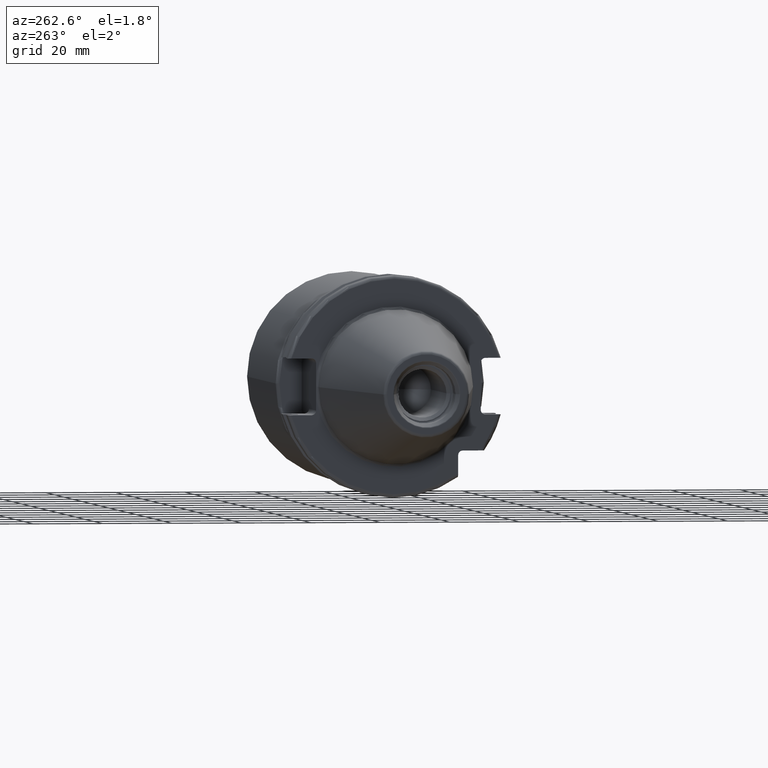
[diagram: clean part render]
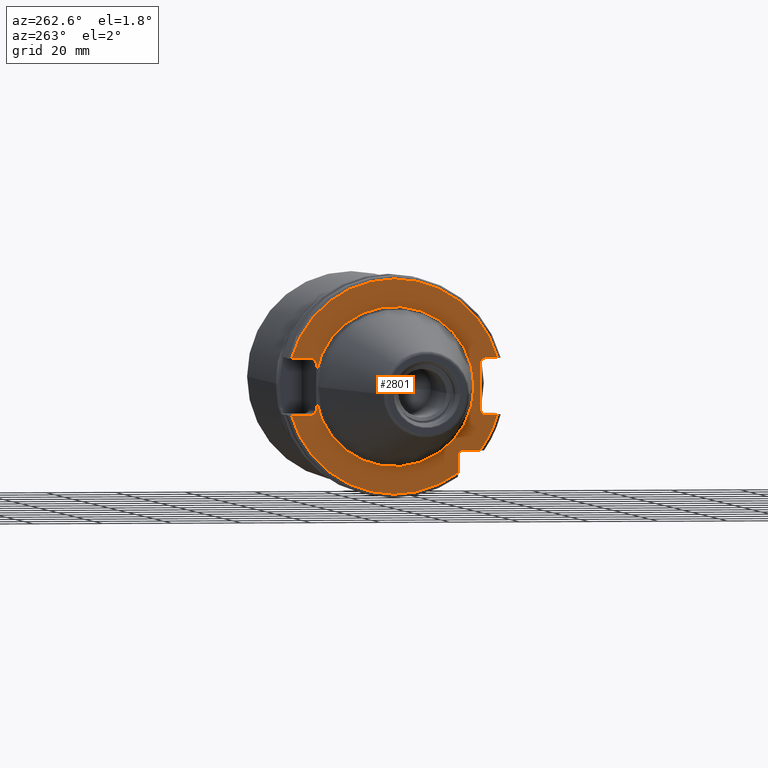
[diagram: same view with one face highlighted and labeled with its STEP entity id]
A machine part, auxiliary view. The second image highlights one B-rep face of the part: STEP entity #2801.
In plain terms, the highlighted planar face has unit normal (1, 0, 0).
Its self-contained STEP definition (entity closure, byte-faithful):
#105=CARTESIAN_POINT('',(3.2E0,2.255E1,-3.842281223440E0));
#117=CARTESIAN_POINT('',(3.2E0,0.E0,0.E0));
#118=DIRECTION('',(-1.E0,0.E0,0.E0));
#119=DIRECTION('',(0.E0,9.857923497268E-1,-1.679685780739E-1));
#120=AXIS2_PLACEMENT_3D('',#117,#118,#119);
#142=CARTESIAN_POINT('',(3.2E0,2.39E1,-6.75E0));
#143=DIRECTION('',(1.E0,0.E0,0.E0));
#144=DIRECTION('',(0.E0,-1.E0,0.E0));
#145=AXIS2_PLACEMENT_3D('',#142,#143,#144);
#199=CARTESIAN_POINT('',(3.2E0,2.39E1,6.75E0));
#200=DIRECTION('',(1.E0,0.E0,0.E0));
#201=DIRECTION('',(0.E0,0.E0,1.E0));
#202=AXIS2_PLACEMENT_3D('',#199,#200,#201);
#244=CARTESIAN_POINT('',(3.2E0,-2.62E1,6.75E0));
#245=DIRECTION('',(1.E0,0.E0,0.E0));
#246=DIRECTION('',(0.E0,1.E0,0.E0));
#247=AXIS2_PLACEMENT_3D('',#244,#245,#246);
#610=CARTESIAN_POINT('',(3.2E0,-2.62E1,-6.75E0));
#611=DIRECTION('',(1.E0,0.E0,0.E0));
#612=DIRECTION('',(0.E0,0.E0,-1.E0));
#613=AXIS2_PLACEMENT_3D('',#610,#611,#612);
#677=DIRECTION('',(0.E0,0.E0,-1.E0));
#678=VECTOR('',#677,2.907718776560E0);
#679=CARTESIAN_POINT('',(3.2E0,2.255E1,6.75E0));
#680=LINE('',#679,#678);
#681=DIRECTION('',(0.E0,-1.E0,0.E0));
#682=VECTOR('',#681,5.776950757280E0);
#683=CARTESIAN_POINT('',(3.2E0,2.967695075728E1,8.1E0));
#684=LINE('',#683,#682);
#685=CARTESIAN_POINT('',(3.2E0,0.E0,0.E0));
#686=DIRECTION('',(1.E0,0.E0,0.E0));
#687=DIRECTION('',(0.E0,9.647119303464E-1,2.633075985372E-1));
#688=AXIS2_PLACEMENT_3D('',#685,#686,#687);
#690=DIRECTION('',(0.E0,1.E0,0.E0));
#691=VECTOR('',#690,3.476950757280E0);
#692=CARTESIAN_POINT('',(3.2E0,-2.967695075728E1,8.1E0));
#693=LINE('',#692,#691);
#694=DIRECTION('',(0.E0,0.E0,1.E0));
#695=VECTOR('',#694,1.35E1);
#696=CARTESIAN_POINT('',(3.2E0,-2.485E1,-6.75E0));
#697=LINE('',#696,#695);
#698=DIRECTION('',(0.E0,1.E0,0.E0));
#699=VECTOR('',#698,3.476950757280E0);
#700=CARTESIAN_POINT('',(3.2E0,-2.967695075728E1,-8.1E0));
#701=LINE('',#700,#699);
#702=CARTESIAN_POINT('',(3.2E0,0.E0,0.E0));
#703=DIRECTION('',(-1.E0,0.E0,0.E0));
#704=DIRECTION('',(0.E0,-8.026089992512E-1,-5.965054855750E-1));
#705=AXIS2_PLACEMENT_3D('',#702,#703,#704);
#707=DIRECTION('',(0.E0,-1.E0,0.E0));
#708=VECTOR('',#707,4.990259339464E0);
#709=CARTESIAN_POINT('',(3.2E0,-1.97E1,-1.835E1));
#710=LINE('',#709,#708);
#711=DIRECTION('',(0.E0,0.E0,1.E0));
#712=VECTOR('',#711,4.990259339464E0);
#713=CARTESIAN_POINT('',(3.2E0,-1.835E1,-2.469025933946E1));
#714=LINE('',#713,#712);
#715=CARTESIAN_POINT('',(3.2E0,0.E0,0.E0));
#716=DIRECTION('',(-1.E0,0.E0,0.E0));
#717=DIRECTION('',(0.E0,9.647119303464E-1,-2.633075985372E-1));
#718=AXIS2_PLACEMENT_3D('',#715,#716,#717);
#720=DIRECTION('',(0.E0,-1.E0,0.E0));
#721=VECTOR('',#720,5.776950757280E0);
#722=CARTESIAN_POINT('',(3.2E0,2.967695075728E1,-8.1E0));
#723=LINE('',#722,#721);
#724=DIRECTION('',(0.E0,0.E0,-1.E0));
#725=VECTOR('',#724,2.907718776560E0);
#726=CARTESIAN_POINT('',(3.2E0,2.255E1,-3.842281223440E0));
#727=LINE('',#726,#725);
#737=CARTESIAN_POINT('',(3.2E0,2.967695075728E1,8.1E0));
#744=CARTESIAN_POINT('',(3.2E0,-2.967695075728E1,8.1E0));
#1164=CARTESIAN_POINT('',(3.2E0,2.967695075728E1,-8.1E0));
#1200=CARTESIAN_POINT('',(3.2E0,-2.967695075728E1,-8.1E0));
#1227=CARTESIAN_POINT('',(3.2E0,-1.97E1,-1.97E1));
#1228=DIRECTION('',(1.E0,0.E0,0.E0));
#1229=DIRECTION('',(0.E0,1.E0,0.E0));
#1230=AXIS2_PLACEMENT_3D('',#1227,#1228,#1229);
#1298=CARTESIAN_POINT('',(3.2E0,2.255E1,3.842281223440E0));
#1309=CARTESIAN_POINT('',(3.2E0,0.E0,0.E0));
#1310=DIRECTION('',(1.E0,0.E0,0.E0));
#1311=DIRECTION('',(0.E0,9.857923497268E-1,1.679685780739E-1));
#1312=AXIS2_PLACEMENT_3D('',#1309,#1310,#1311);
#1532=CARTESIAN_POINT('',(3.2E0,-2.2875E1,0.E0));
#1534=VERTEX_POINT('',#1532);
#1674=VERTEX_POINT('',#1298);
#1676=VERTEX_POINT('',#105);
#1679=VERTEX_POINT('',#737);
#1680=VERTEX_POINT('',#744);
#1683=VERTEX_POINT('',#1164);
#1684=VERTEX_POINT('',#1200);
#1699=CARTESIAN_POINT('',(3.2E0,-1.835E1,-2.469025933946E1));
#1700=VERTEX_POINT('',#1699);
#1702=CARTESIAN_POINT('',(3.2E0,2.39E1,-8.1E0));
#1704=VERTEX_POINT('',#1702);
#1706=CARTESIAN_POINT('',(3.2E0,2.39E1,8.1E0));
#1708=VERTEX_POINT('',#1706);
#1710=CARTESIAN_POINT('',(3.2E0,-2.485E1,-6.75E0));
#1712=VERTEX_POINT('',#1710);
#1714=CARTESIAN_POINT('',(3.2E0,-2.62E1,-8.1E0));
#1716=VERTEX_POINT('',#1714);
#1718=CARTESIAN_POINT('',(3.2E0,-2.62E1,8.1E0));
#1720=VERTEX_POINT('',#1718);
#1722=CARTESIAN_POINT('',(3.2E0,-2.485E1,6.75E0));
#1724=VERTEX_POINT('',#1722);
#1731=CARTESIAN_POINT('',(3.2E0,2.255E1,6.75E0));
#1732=VERTEX_POINT('',#1731);
#1733=CARTESIAN_POINT('',(3.2E0,2.255E1,-6.75E0));
#1734=VERTEX_POINT('',#1733);
#1735=CARTESIAN_POINT('',(3.2E0,-1.97E1,-1.835E1));
#1736=CARTESIAN_POINT('',(3.2E0,-2.469025933946E1,-1.835E1));
#1737=VERTEX_POINT('',#1735);
#1738=VERTEX_POINT('',#1736);
#1739=CARTESIAN_POINT('',(3.2E0,-1.835E1,-1.97E1));
#1740=VERTEX_POINT('',#1739);
#2768=CARTESIAN_POINT('',(3.2E0,0.E0,0.E0));
#2769=DIRECTION('',(1.E0,0.E0,0.E0));
#2770=DIRECTION('',(0.E0,-1.E0,0.E0));
#2771=AXIS2_PLACEMENT_3D('',#2768,#2769,#2770);
#2772=PLANE('',#2771);
#2773=ORIENTED_EDGE('',*,*,#2016,.F.);
#2774=ORIENTED_EDGE('',*,*,#2102,.F.);
#2775=ORIENTED_EDGE('',*,*,#2137,.F.);
#2777=ORIENTED_EDGE('',*,*,#2776,.T.);
#2778=ORIENTED_EDGE('',*,*,#2163,.T.);
#2779=ORIENTED_EDGE('',*,*,#2199,.F.);
#2780=ORIENTED_EDGE('',*,*,#2215,.F.);
#2781=ORIENTED_EDGE('',*,*,#2667,.F.);
#2782=ORIENTED_EDGE('',*,*,#2701,.F.);
#2784=ORIENTED_EDGE('',*,*,#2783,.F.);
#2786=ORIENTED_EDGE('',*,*,#2785,.F.);
#2788=ORIENTED_EDGE('',*,*,#2787,.F.);
#2790=ORIENTED_EDGE('',*,*,#2789,.F.);
#2792=ORIENTED_EDGE('',*,*,#2791,.F.);
#2793=ORIENTED_EDGE('',*,*,#2741,.T.);
#2794=ORIENTED_EDGE('',*,*,#2034,.F.);
#2795=ORIENTED_EDGE('',*,*,#2021,.F.);
#2796=ORIENTED_EDGE('',*,*,#1984,.T.);
#2798=ORIENTED_EDGE('',*,*,#2797,.F.);
#2799=EDGE_LOOP('',(#2773,#2774,#2775,#2777,#2778,#2779,#2780,#2781,#2782,#2784,
#2786,#2788,#2790,#2792,#2793,#2794,#2795,#2796,#2798));
#2800=FACE_OUTER_BOUND('',#2799,.F.);
#2801=ADVANCED_FACE('',(#2800),#2772,.F.);
#121=CIRCLE('',#120,2.2875E1);
#146=CIRCLE('',#145,1.35E0);
#203=CIRCLE('',#202,1.35E0);
#248=CIRCLE('',#247,1.35E0);
#614=CIRCLE('',#613,1.35E0);
#689=CIRCLE('',#688,3.07625E1);
#706=CIRCLE('',#705,3.07625E1);
#719=CIRCLE('',#718,3.07625E1);
#1231=CIRCLE('',#1230,1.35E0);
#1313=CIRCLE('',#1312,2.2875E1);
#1984=EDGE_CURVE('',#1676,#1534,#121,.T.);
#2016=EDGE_CURVE('',#1732,#1674,#680,.T.);
#2021=EDGE_CURVE('',#1676,#1734,#727,.T.);
#2034=EDGE_CURVE('',#1734,#1704,#146,.T.);
#2102=EDGE_CURVE('',#1708,#1732,#203,.T.);
#2137=EDGE_CURVE('',#1679,#1708,#684,.T.);
#2163=EDGE_CURVE('',#1680,#1720,#693,.T.);
#2199=EDGE_CURVE('',#1724,#1720,#248,.T.);
#2215=EDGE_CURVE('',#1712,#1724,#697,.T.);
#2667=EDGE_CURVE('',#1716,#1712,#614,.T.);
#2701=EDGE_CURVE('',#1684,#1716,#701,.T.);
#2741=EDGE_CURVE('',#1683,#1704,#723,.T.);
#2776=EDGE_CURVE('',#1679,#1680,#689,.T.);
#2783=EDGE_CURVE('',#1738,#1684,#706,.T.);
#2785=EDGE_CURVE('',#1737,#1738,#710,.T.);
#2787=EDGE_CURVE('',#1740,#1737,#1231,.T.);
#2789=EDGE_CURVE('',#1700,#1740,#714,.T.);
#2791=EDGE_CURVE('',#1683,#1700,#719,.T.);
#2797=EDGE_CURVE('',#1674,#1534,#1313,.T.);